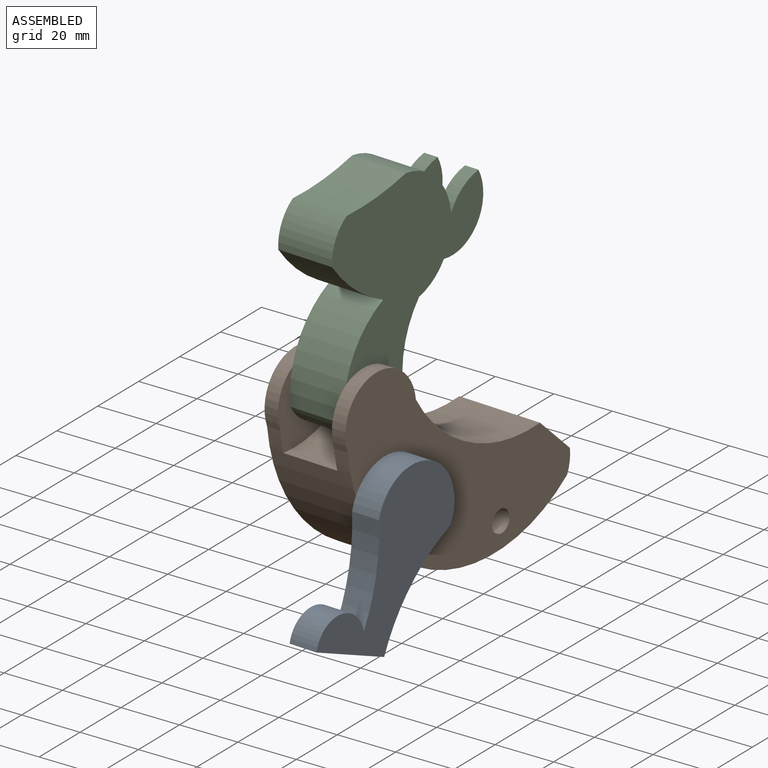
[diagram: assembled view]
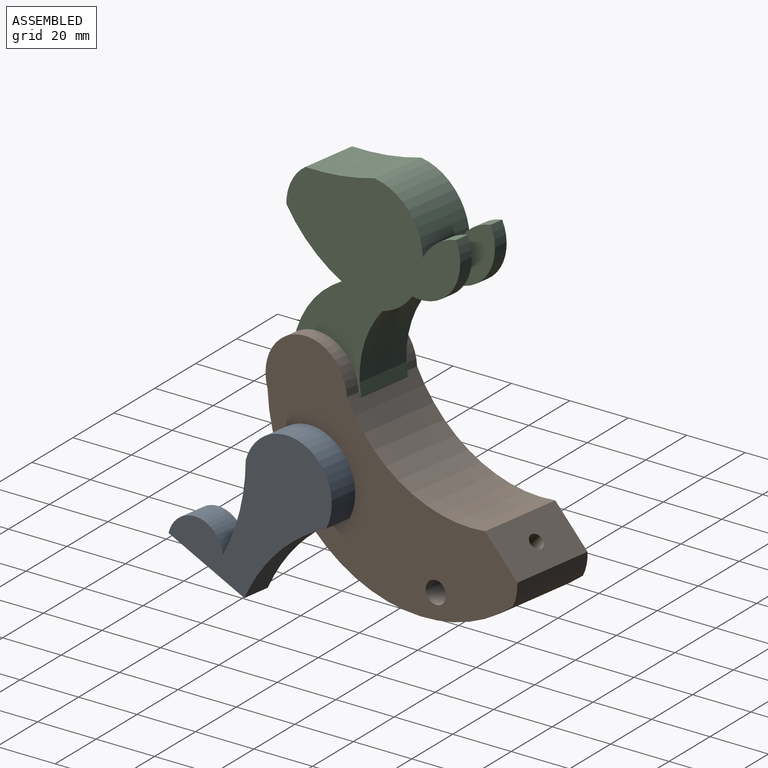
[diagram: assembled view, second angle]
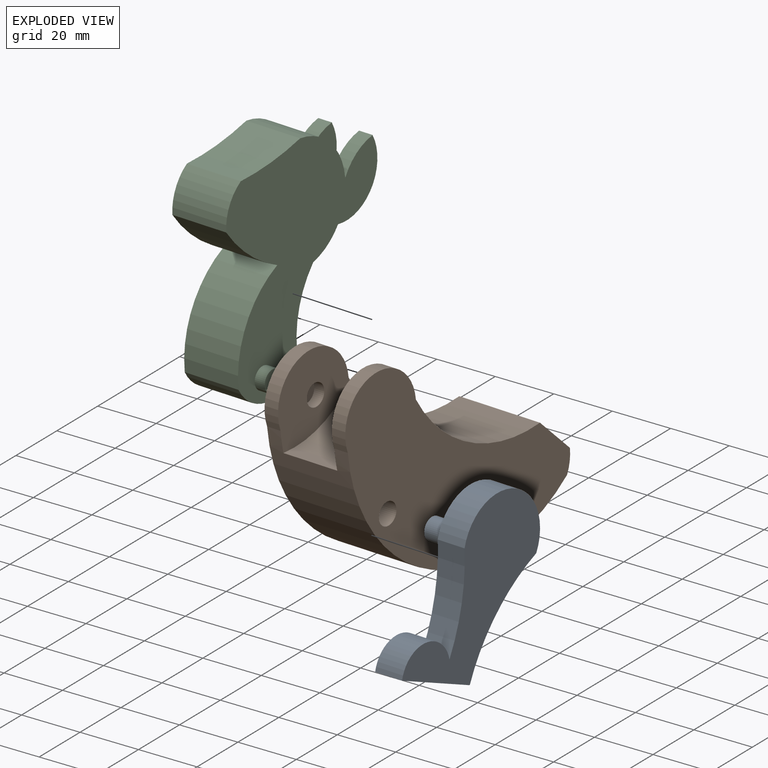
[diagram: exploded view]
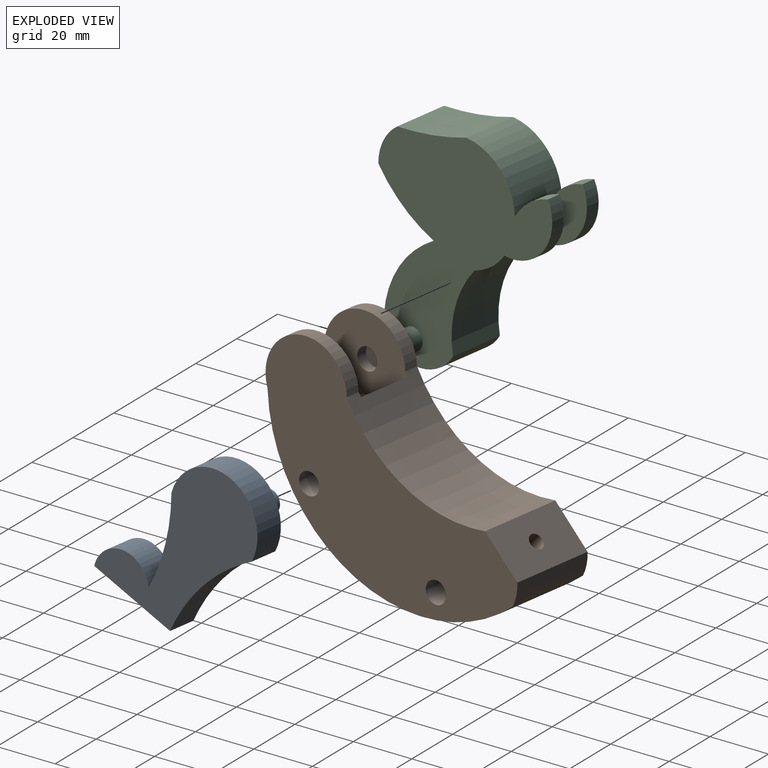
[diagram: exploded view, second angle]
ASSEMBLY  parts=3 mates=2
PART A: 9 faces, bbox 47.2x57x25 mm
  f0: cylinder r=64.05mm len=31.99mm, axis (0,0,-1), area 326.6mm2, adj f1,f4,f5,f6
  f1: cylinder r=16.33mm len=32.66mm, axis (0,0,-1), area 547.9mm2, adj f0,f2,f5,f6
  f2: cylinder r=61.01mm len=38.94mm, axis (0,0,-1), area 431.2mm2, adj f1,f3,f5,f6
  f3: plane 30.63x10mm, normal (0,-1,0), area 306.3mm2, adj f2,f4,f5,f6
  f4: cylinder r=10.32mm len=19.13mm, axis (0,0,-1), area 283.1mm2, adj f0,f3,f5,f6
  f5: plane 57.01x47.17mm, normal (0,0,1), area 1314.2mm2, adj f0,f1,f2,f3,f4,f7
  f6: plane 57.01x47.17mm, normal (0,0,-1), area 1358.4mm2, adj f0,f1,f2,f3,f4
  f7: cylinder r=3.75mm len=15mm, axis (0,0,-1), area 353.4mm2, adj f5,f8
  f8: plane 7.5x7.5mm, normal (0,0,1), area 44.2mm2, adj f7
PART B: 19 faces, bbox 103.8x56.8x30 mm
  f0: cylinder r=15.11mm len=28.72mm, axis (0,0,-1), area 257.9mm2, adj f1,f2,f9,f13
  f1: cylinder r=56.09mm len=100mm, axis (0,0,-1), area 3560.8mm2, adj f0,f3,f4,f8,f9,f12,f13,f14
  f2: cylinder r=50.53mm len=57.71mm, axis (0,0,-1), area 1814.9mm2, adj f0,f3,f5,f8,f9,f12,f13,f14
  f3: cylinder r=15.11mm len=28.72mm, axis (0,0,-1), area 257.9mm2, adj f1,f2,f8,f14
  f4: cylinder r=14.87mm len=30mm, axis (0,0,-1), area 239.9mm2, adj f1,f5,f8,f9
  f5: plane 30x15.87mm, normal (0.38,0.92,0), area 496.1mm2, adj f2,f4,f8,f9,f10
  f6: cylinder r=3.75mm len=30mm, axis (0,0,-1), area 706.9mm2, adj f8,f9
  f7: cylinder r=3.75mm len=30mm, axis (0,0,-1), area 706.9mm2, adj f8,f9
  f8: plane 103.82x56.84mm, normal (0,0,1), area 3457.9mm2, adj f1,f2,f3,f4,f5,f6,f7
  f9: plane 103.82x56.84mm, normal (0,0,-1), area 3457.9mm2, adj f0,f1,f2,f4,f5,f6,f7
  f10: cylinder r=2.5mm len=11.15mm, axis (0.38,0.92,0), area 157.1mm2, adj f5,f11
  f11: plane 5x4.62mm, normal (0.38,0.92,0), area 19.6mm2, adj f10
  f12: cylinder r=37.5mm len=22.73mm, axis (0,0,1), area 649.9mm2, adj f1,f2,f13,f14
  f13: plane 31.36x30.03mm, normal (0,0,1), area 583.7mm2, adj f0,f1,f2,f12,f17
  f14: plane 31.36x30.03mm, normal (0,0,-1), area 583.7mm2, adj f1,f2,f3,f12,f16
  f15: plane 7.5x7.5mm, normal (0,0,-1), area 44.2mm2, adj f16
  f16: cylinder r=3.75mm len=7.5mm, axis (0,0,-1), area 88.4mm2, adj f14,f15
  f17: cylinder r=3.75mm len=7.5mm, axis (0,0,-1), area 88.4mm2, adj f13,f18
  f18: plane 7.5x7.5mm, normal (0,0,1), area 44.2mm2, adj f17
PART C: 21 faces, bbox 65.6x82.1x27.5 mm
  f0: cylinder r=15.98mm len=10.61mm, axis (0,0,-1), area 139.1mm2, adj f2,f3,f17,f20
  f1: cylinder r=33.37mm len=22.76mm, axis (0,0,-1), area 608mm2, adj f2,f8,f9,f10
  f2: cylinder r=20.12mm len=20mm, axis (0,0,-1), area 273.7mm2, adj f0,f1,f9,f10,f15,f19
  f3: cylinder r=20.12mm len=25.97mm, axis (0,0,-1), area 571.9mm2, adj f0,f4,f9,f10,f16,f18
  f4: cylinder r=92.11mm len=23.04mm, axis (0,0,-1), area 519.7mm2, adj f3,f5,f9,f10
  f5: cylinder r=15.58mm len=20mm, axis (0,0,-1), area 311.5mm2, adj f4,f6,f9,f10
  f6: cylinder r=50.48mm len=26.55mm, axis (0,0,-1), area 554mm2, adj f5,f7,f9,f10
  f7: cylinder r=33.17mm len=33.34mm, axis (0,0,-1), area 775.8mm2, adj f6,f8,f9,f10
  f8: cylinder r=14.71mm len=20.35mm, axis (0,0,-1), area 626.6mm2, adj f1,f7,f9,f10
  f9: plane 82.09x65.56mm, normal (0,0,1), area 2487.5mm2, adj f1,f2,f3,f4,f5,f6,f7,f8
  f10: plane 81.85x65.56mm, normal (0,0,-1), area 2485.2mm2, adj f1,f2,f3,f4,f5,f6,f7,f8
  f11: plane 7.5x7.5mm, normal (0,0,-1), area 44.2mm2, adj f12
  f12: cylinder r=3.75mm len=7.5mm, axis (0,0,-1), area 88.4mm2, adj f10,f11
  f13: cylinder r=3.75mm len=7.5mm, axis (0,0,-1), area 88.4mm2, adj f9,f14
  f14: plane 7.5x7.5mm, normal (0,0,1), area 44.2mm2, adj f13
  f15: cylinder r=15.01mm len=25.57mm, axis (0,0,1), area 166.5mm2, adj f2,f9,f16,f17
  f16: cylinder r=17.85mm len=14.96mm, axis (0,0,1), area 77.2mm2, adj f3,f9,f15,f17
  f17: plane 25.57x14.46mm, normal (0,0,-1), area 225.4mm2, adj f0,f15,f16
  f18: cylinder r=17.13mm len=14.72mm, axis (0,0,-1), area 76.1mm2, adj f3,f10,f19,f20
  f19: cylinder r=14.83mm len=25.33mm, axis (0,0,-1), area 165.6mm2, adj f2,f10,f18,f20
  f20: plane 25.33x14.46mm, normal (0,0,1), area 223mm2, adj f0,f18,f19
PLACE A rot(axis=(0.45,-0.74,-0.51),112.7deg) t=(45.4,-61.35,-81.4)mm
PLACE B rot(axis=(0.53,0.7,0.47),104.1deg) t=(22.8,-39.77,-89.78)mm fixed
PLACE C rot(axis=(0.35,0.9,0.26),92.3deg) t=(17.72,-72.84,-41.01)mm
MATE revolute C.f12 <-> B.f16  axis (-0.99,0.1,-0.03) through (5.82,-58.16,-52.7)mm
MATE revolute A.f7 <-> B.f6  axis (-0.99,0.1,-0.03) through (20.55,-58.73,-82.21)mm
